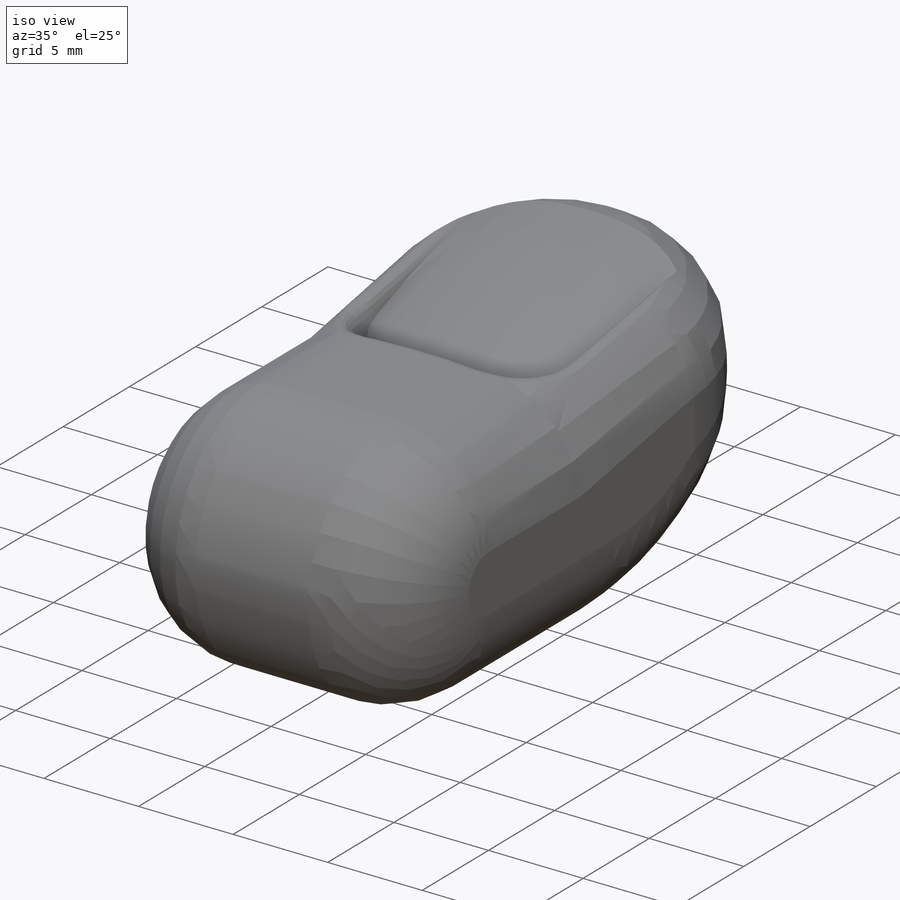
[diagram: iso view]
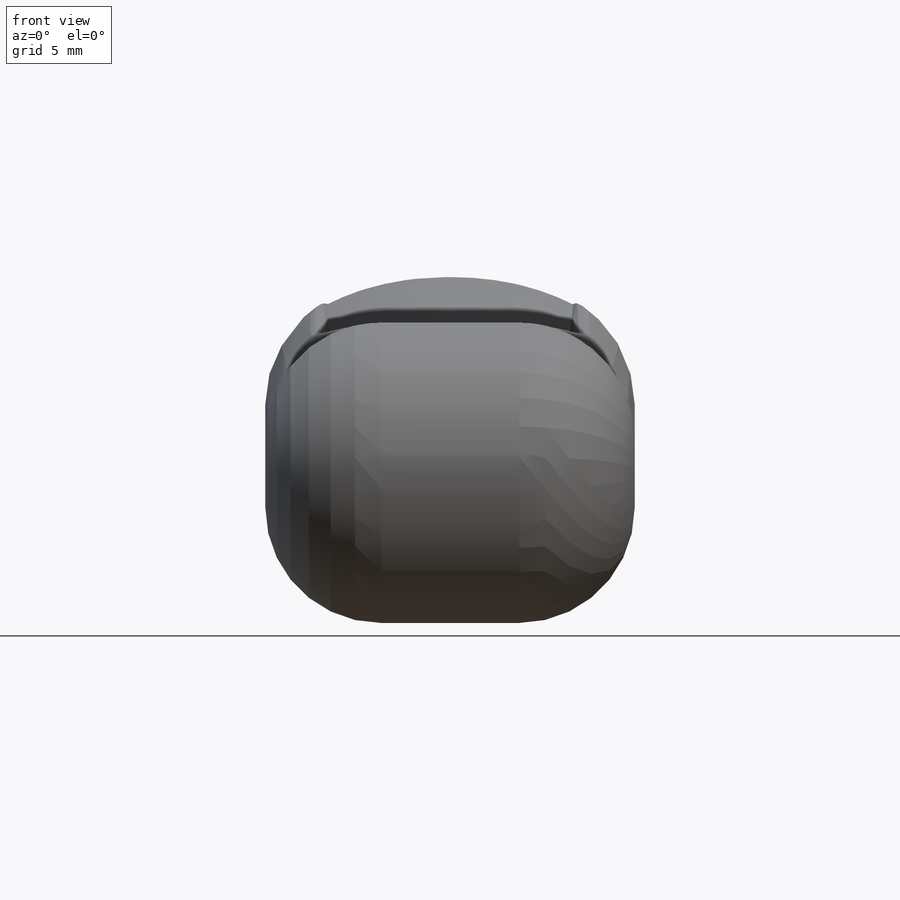
[diagram: front view]
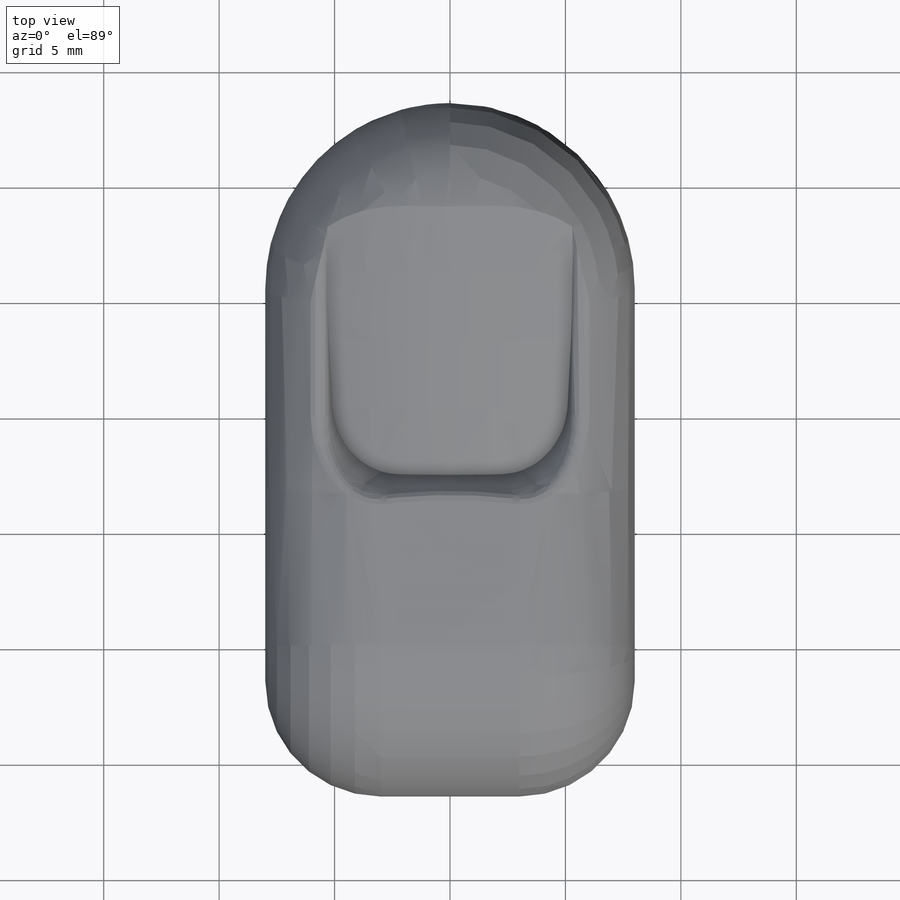
[diagram: top view]
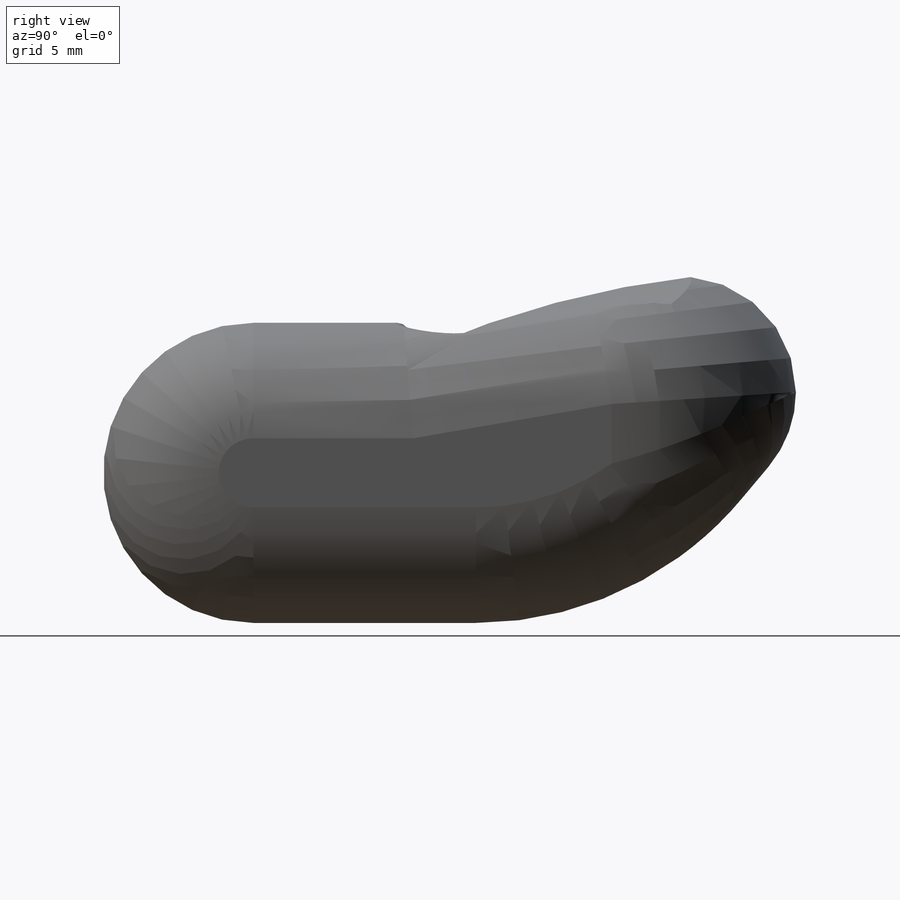
[diagram: right view]
SOLIDWORKS PART (.sldprt)
format: sldprt  version: not decoded by parser v0  size: 220,160 bytes
history: native  units: mm
features: sketch x4, fillet x4, plane x3, cut_extrude x2, material x1, extrude x1, cut_revolve x1 (+11 scaffold rows collapsed)
feature tree (27):
  scaffold x11  (default folders/planes/origin — collapsed)
  material  "Material <nicht festgelegt>"
  plane  "Vorne"
  plane  "Oben"
  plane  "Rechts"
  sketch  "Skizze2"  dims[c1.D1=13.0mm c1.D2=10.0mm c1.D3=15.0mm c1.D5=15.0mm c2.D3=30.0mm c2.D4=3.0mm c2.D6=~11.388876mm c3.D6=50.0deg c3.D7=13.0mm]
  extrude  "Basis-Fingersegment"  Depth=16mm
  fillet  "Verrundung seitlich"  Radius=5mm
  sketch  "Skizze3"  dims[D1=9.0mm]
  cut_extrude  "Radius Fingerspitze"  [1 undecoded]
  fillet  "Verrundung Fingerkuppe"  Radius=5mm
  sketch  "Skizze5"
  cut_revolve  "Fingernagel"  Angle=45deg
  fillet  "Verrundung Fingernagel innen"  Radius=3mm
  fillet  "Verrundung am Fingernagel"  Radius=0.5mm
  sketch  "Skizze6"  dims[c1.D1=3.0mm c1.D3=7.5mm c1.D4=5.0mm c1.D6=1.0mm c1.D2=5.5mm c2.D3=5.5mm c2.D5=~3.796139mm c3.D5=15.0deg]
  cut_extrude  "Gelenk"  Depth=10mm
decode coverage: 10 of 12 modeling features carry decoded parameters
note: ~ marks probable driven/reference dimensions
note: 1 parameter value undecoded
note: suppression state not decoded; provenance and decode notes live in map.json
